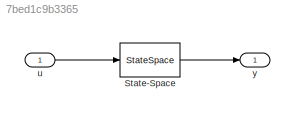
MODEL slx_7bed1c9b3365
KIND model
CONFIG AbsTol = auto
CONFIG EnableMultiTasking = off
CONFIG FixedStep = auto
CONFIG MaxStep = auto
CONFIG MinStep = auto
CONFIG RelTol = 1e-3
CONFIG SampleTimeConstraint = Unconstrained
CONFIG Solver = VariableStepAuto
CONFIG SolverName = VariableStepAuto
CONFIG StartTime = 0.0
CONFIG StopTime = sim_params.T
BLOCK [StateSpace] State-Space
  A = sim_params.A
  B = sim_params.B
  C = sim_params.C
  D = sim_params.D
  InitialCondition = sim_params.xi
  Ports = [1, 1]
BLOCK [Inport] u
  IconDisplay = Port number
BLOCK [Outport] y
  IconDisplay = Port number
LINE State-Space:1 -> y:1
LINE u:1 -> State-Space:1
